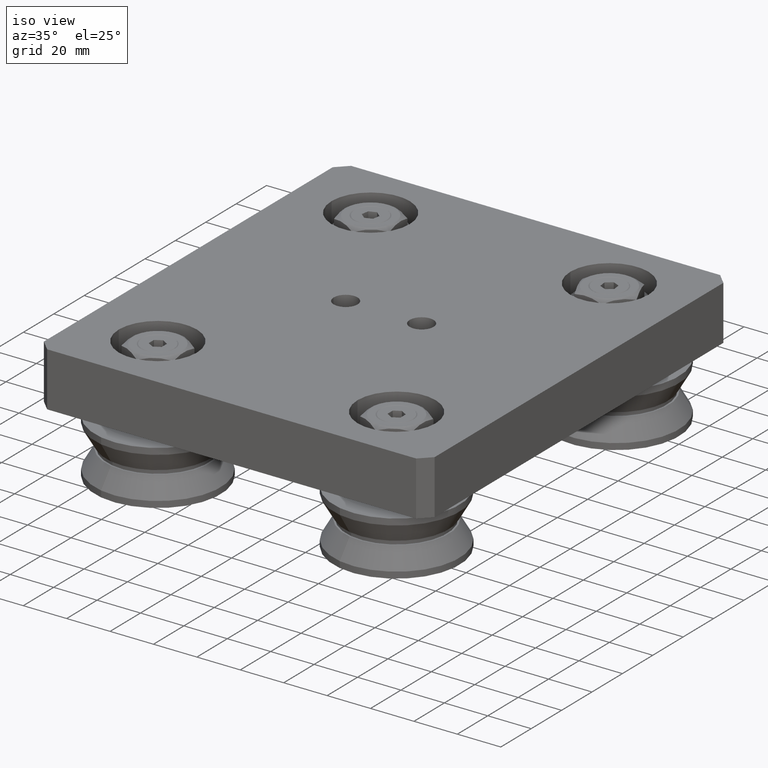
[diagram: clean part render]
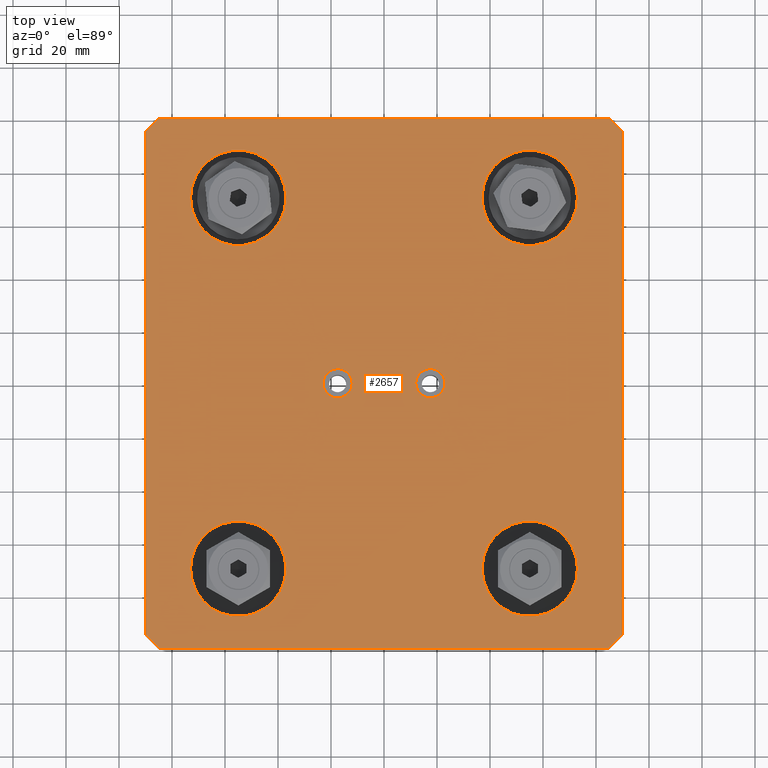
[diagram: tour spotlight — one face highlighted and labeled with its STEP entity id]
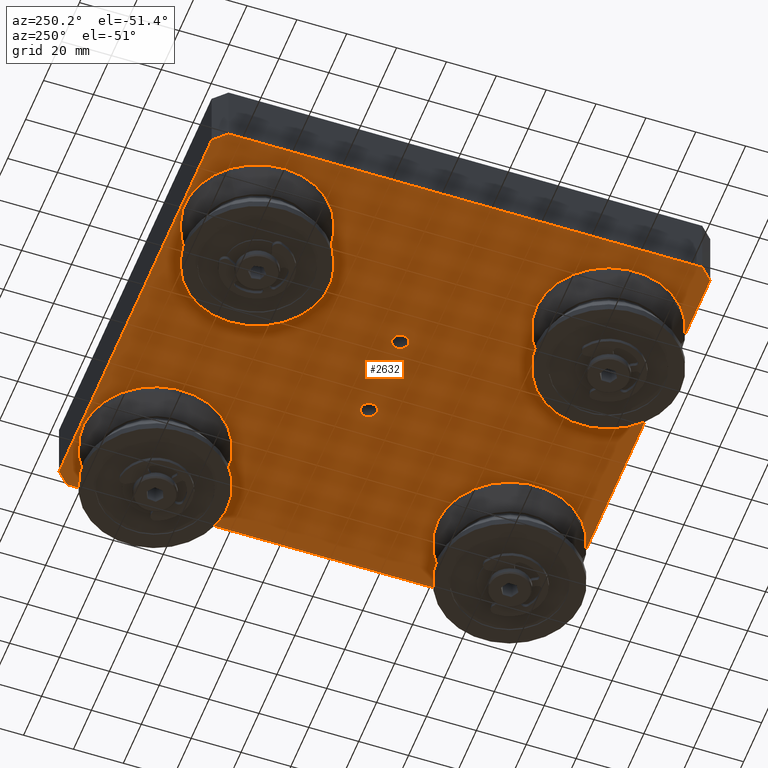
[diagram: tour spotlight — one face highlighted and labeled with its STEP entity id]
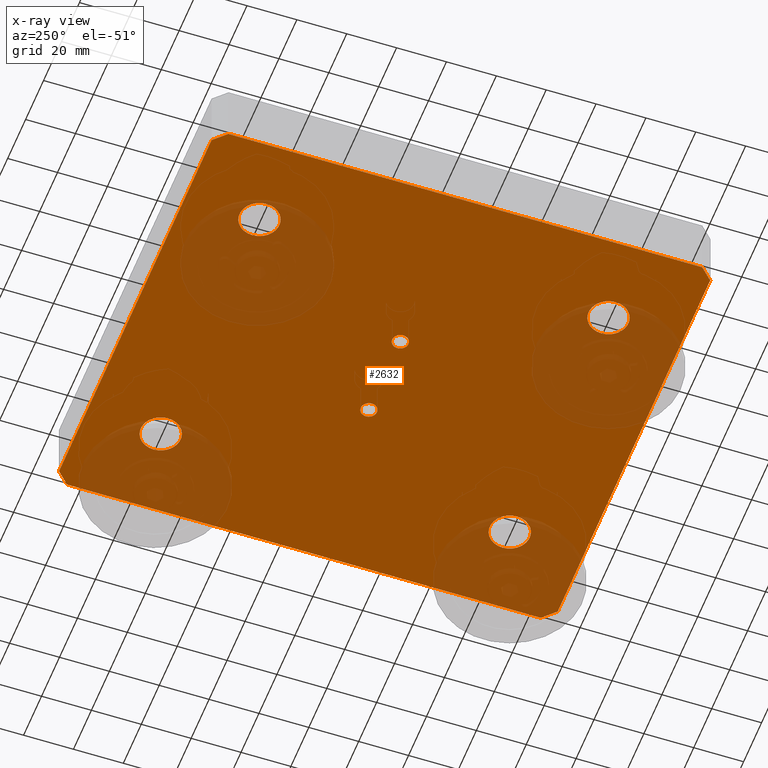
[diagram: x-ray of the same camera — body ghosted, this tour face saturated]
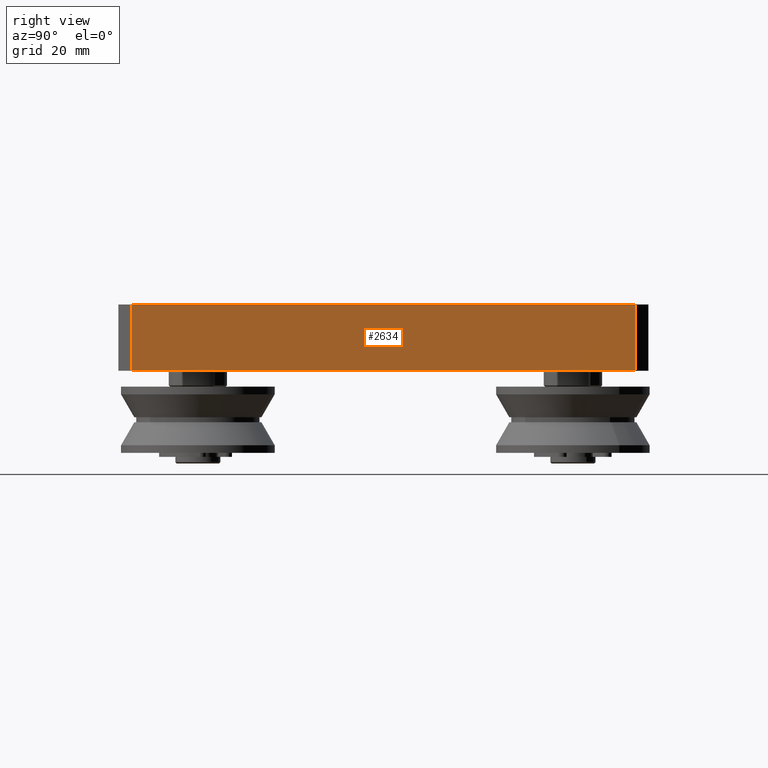
[diagram: tour spotlight — one face highlighted and labeled with its STEP entity id]
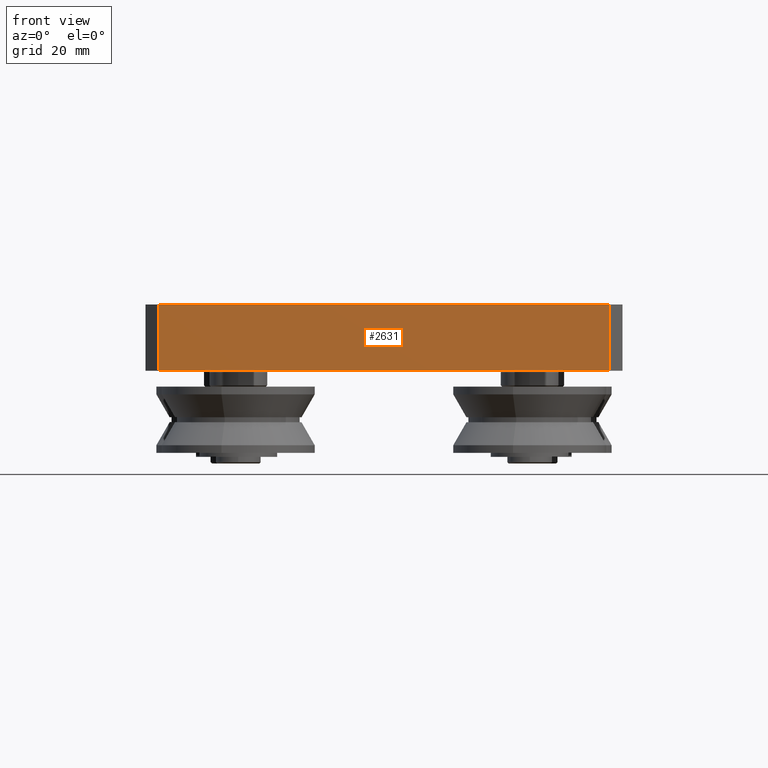
[diagram: tour spotlight — one face highlighted and labeled with its STEP entity id]
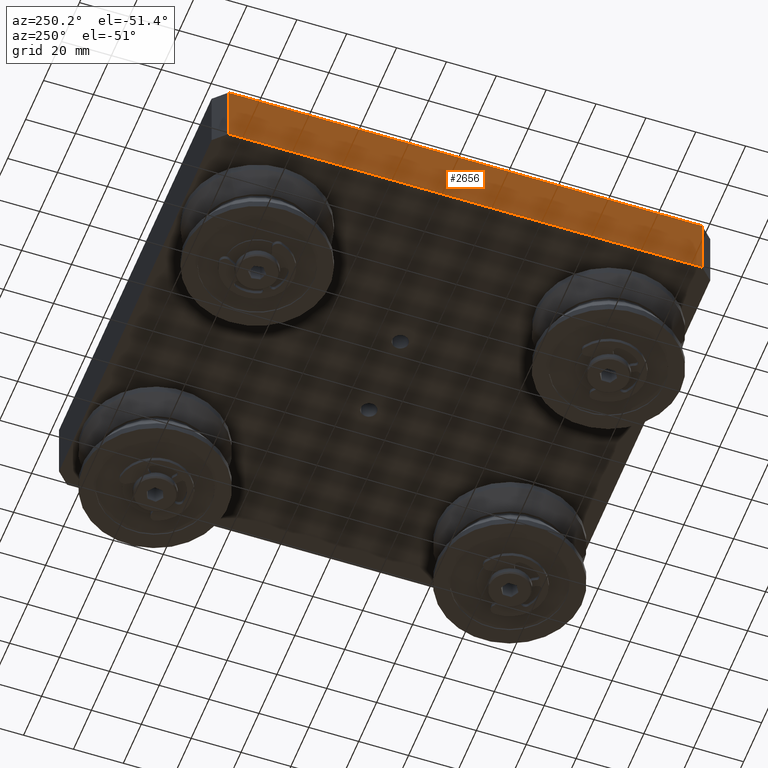
[diagram: tour spotlight — one face highlighted and labeled with its STEP entity id]
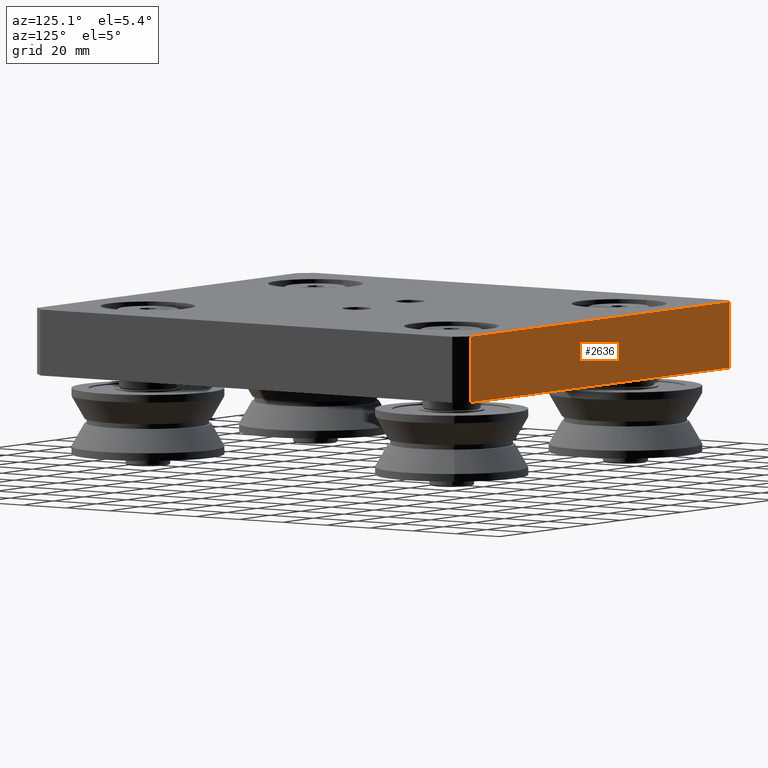
[diagram: tour spotlight — one face highlighted and labeled with its STEP entity id]
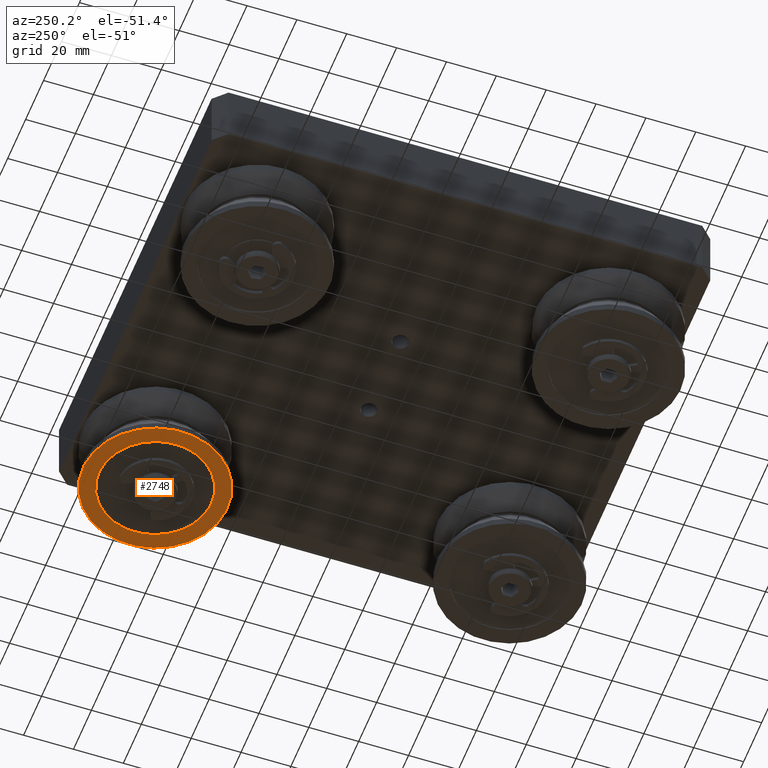
[diagram: tour spotlight — one face highlighted and labeled with its STEP entity id]
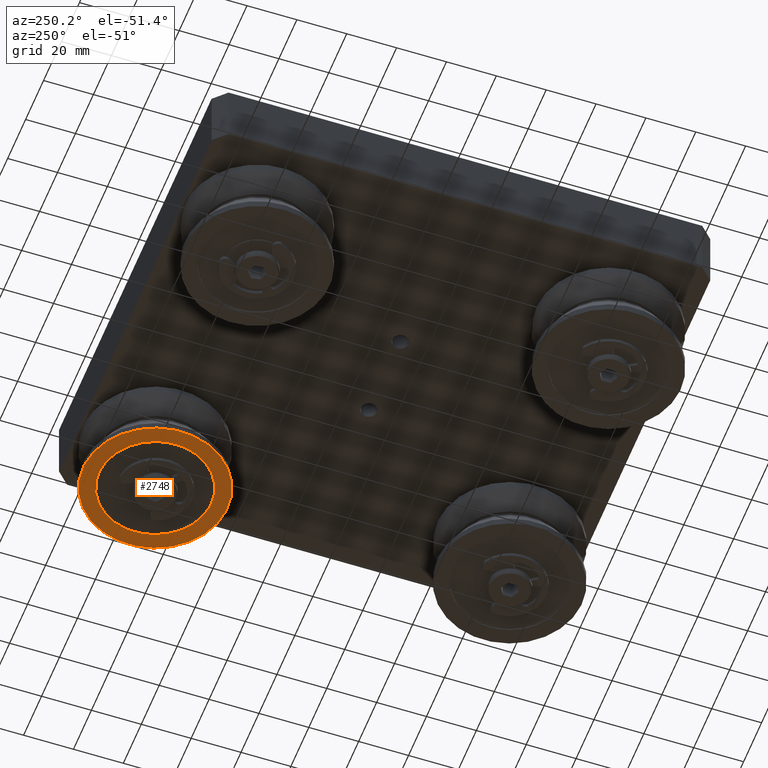
[diagram: tour spotlight — one face highlighted and labeled with its STEP entity id]
A machine part: a face-by-face anatomy tour. The part has 428 B-rep faces; the first image is the clean iso view, then the 8 largest visible faces are spotlighted one at a time (largest first), each with its STEP entity span.

Face 1 — top view, entity #2657. In plain terms, the highlighted planar face has unit normal (0, 0, 1).
Definition (entity closure, byte-faithful):
#200=FACE_BOUND('',#582,.T.);
#201=FACE_BOUND('',#583,.T.);
#202=FACE_BOUND('',#584,.T.);
#203=FACE_BOUND('',#585,.T.);
#204=FACE_BOUND('',#586,.T.);
#205=FACE_BOUND('',#587,.T.);
#235=CIRCLE('',#3023,18.);
#238=CIRCLE('',#3029,18.);
#241=CIRCLE('',#3035,18.);
#244=CIRCLE('',#3041,18.);
#247=CIRCLE('',#3047,5.5);
#250=CIRCLE('',#3053,5.5);
#398=FACE_OUTER_BOUND('',#581,.T.);
#581=EDGE_LOOP('',(#1894,#1895,#1896,#1897,#1898,#1899,#1900,#1901));
#582=EDGE_LOOP('',(#1902));
#583=EDGE_LOOP('',(#1903));
#584=EDGE_LOOP('',(#1904));
#585=EDGE_LOOP('',(#1905));
#586=EDGE_LOOP('',(#1906));
#587=EDGE_LOOP('',(#1907));
#752=LINE('',#4243,#967);
#758=LINE('',#4254,#973);
#765=LINE('',#4281,#980);
#768=LINE('',#4286,#983);
#769=LINE('',#4289,#984);
#772=LINE('',#4294,#987);
#773=LINE('',#4297,#988);
#787=LINE('',#4366,#1002);
#967=VECTOR('',#3349,10.);
#973=VECTOR('',#3357,10.);
#980=VECTOR('',#3380,10.);
#983=VECTOR('',#3385,10.);
#984=VECTOR('',#3388,10.);
#987=VECTOR('',#3393,10.);
#988=VECTOR('',#3396,10.);
#1002=VECTOR('',#3484,10.);
#1182=VERTEX_POINT('',#4241);
#1183=VERTEX_POINT('',#4242);
#1187=VERTEX_POINT('',#4252);
#1199=VERTEX_POINT('',#4280);
#1200=VERTEX_POINT('',#4284);
#1201=VERTEX_POINT('',#4288);
#1202=VERTEX_POINT('',#4292);
#1203=VERTEX_POINT('',#4296);
#1206=VERTEX_POINT('',#4305);
#1209=VERTEX_POINT('',#4316);
#1212=VERTEX_POINT('',#4327);
#1215=VERTEX_POINT('',#4338);
#1218=VERTEX_POINT('',#4349);
#1221=VERTEX_POINT('',#4360);
#1417=EDGE_CURVE('',#1182,#1183,#752,.T.);
#1423=EDGE_CURVE('',#1182,#1187,#758,.T.);
#1436=EDGE_CURVE('',#1199,#1187,#765,.T.);
#1439=EDGE_CURVE('',#1199,#1200,#768,.T.);
#1440=EDGE_CURVE('',#1201,#1200,#769,.T.);
#1443=EDGE_CURVE('',#1201,#1202,#772,.T.);
#1444=EDGE_CURVE('',#1203,#1202,#773,.T.);
#1448=EDGE_CURVE('',#1206,#1206,#235,.T.);
#1453=EDGE_CURVE('',#1209,#1209,#238,.T.);
#1458=EDGE_CURVE('',#1212,#1212,#241,.T.);
#1463=EDGE_CURVE('',#1215,#1215,#244,.T.);
#1468=EDGE_CURVE('',#1218,#1218,#247,.T.);
#1473=EDGE_CURVE('',#1221,#1221,#250,.T.);
#1476=EDGE_CURVE('',#1203,#1183,#787,.T.);
#1894=ORIENTED_EDGE('',*,*,#1417,.F.);
#1895=ORIENTED_EDGE('',*,*,#1423,.T.);
#1896=ORIENTED_EDGE('',*,*,#1436,.F.);
#1897=ORIENTED_EDGE('',*,*,#1439,.T.);
#1898=ORIENTED_EDGE('',*,*,#1440,.F.);
#1899=ORIENTED_EDGE('',*,*,#1443,.T.);
#1900=ORIENTED_EDGE('',*,*,#1444,.F.);
#1901=ORIENTED_EDGE('',*,*,#1476,.T.);
#1902=ORIENTED_EDGE('',*,*,#1448,.T.);
#1903=ORIENTED_EDGE('',*,*,#1453,.T.);
#1904=ORIENTED_EDGE('',*,*,#1458,.T.);
#1905=ORIENTED_EDGE('',*,*,#1463,.T.);
#1906=ORIENTED_EDGE('',*,*,#1468,.T.);
#1907=ORIENTED_EDGE('',*,*,#1473,.T.);
#2545=PLANE('',#3056);
#2657=ADVANCED_FACE('',(#398,#200,#201,#202,#203,#204,#205),#2545,.T.);
#3023=AXIS2_PLACEMENT_3D('',#4306,#3406,#3407);
#3029=AXIS2_PLACEMENT_3D('',#4317,#3420,#3421);
#3035=AXIS2_PLACEMENT_3D('',#4328,#3434,#3435);
#3041=AXIS2_PLACEMENT_3D('',#4339,#3448,#3449);
#3047=AXIS2_PLACEMENT_3D('',#4350,#3462,#3463);
#3053=AXIS2_PLACEMENT_3D('',#4361,#3476,#3477);
#3056=AXIS2_PLACEMENT_3D('',#4367,#3485,#3486);
#3349=DIRECTION('',(-0.707106781186548,0.707106781186548,0.));
#3357=DIRECTION('',(1.,0.,0.));
#3380=DIRECTION('',(-0.707106781186548,-0.707106781186548,0.));
#3385=DIRECTION('',(0.,1.,0.));
#3388=DIRECTION('',(0.707106781186548,-0.707106781186548,0.));
#3393=DIRECTION('',(-1.,0.,0.));
#3396=DIRECTION('',(0.707106781186548,0.707106781186548,0.));
#3406=DIRECTION('center_axis',(0.,0.,-1.));
#3407=DIRECTION('ref_axis',(1.,0.,0.));
#3420=DIRECTION('center_axis',(0.,0.,-1.));
#3421=DIRECTION('ref_axis',(1.,0.,0.));
#3434=DIRECTION('center_axis',(0.,0.,-1.));
#3435=DIRECTION('ref_axis',(1.,0.,0.));
#3448=DIRECTION('center_axis',(0.,0.,-1.));
#3449=DIRECTION('ref_axis',(1.,0.,0.));
#3462=DIRECTION('center_axis',(0.,0.,-1.));
#3463=DIRECTION('ref_axis',(1.,0.,0.));
#3476=DIRECTION('center_axis',(0.,0.,-1.));
#3477=DIRECTION('ref_axis',(1.,0.,0.));
#3484=DIRECTION('',(0.,-1.,0.));
#3485=DIRECTION('center_axis',(0.,0.,1.));
#3486=DIRECTION('ref_axis',(1.,0.,0.));
#4241=CARTESIAN_POINT('',(-85.,-100.,25.));
#4242=CARTESIAN_POINT('',(-90.,-95.,25.));
#4243=CARTESIAN_POINT('',(-90.,-95.,25.));
#4252=CARTESIAN_POINT('',(85.,-100.,25.));
#4254=CARTESIAN_POINT('',(90.,-100.,25.));
#4280=CARTESIAN_POINT('',(90.,-95.,25.));
#4281=CARTESIAN_POINT('',(90.,-95.,25.));
#4284=CARTESIAN_POINT('',(90.,95.,25.));
#4286=CARTESIAN_POINT('',(90.,100.,25.));
#4288=CARTESIAN_POINT('',(85.,100.,25.));
#4289=CARTESIAN_POINT('',(90.,95.,25.));
#4292=CARTESIAN_POINT('',(-85.,100.,25.));
#4294=CARTESIAN_POINT('',(-90.,100.,25.));
#4296=CARTESIAN_POINT('',(-90.,95.,25.));
#4297=CARTESIAN_POINT('',(-90.,95.,25.));
#4305=CARTESIAN_POINT('',(37.,-70.,25.));
#4306=CARTESIAN_POINT('Origin',(55.,-70.,25.));
#4316=CARTESIAN_POINT('',(-73.,70.,25.));
#4317=CARTESIAN_POINT('Origin',(-55.,70.,25.));
#4327=CARTESIAN_POINT('',(37.,70.,25.));
#4328=CARTESIAN_POINT('Origin',(55.,70.,25.));
#4338=CARTESIAN_POINT('',(-73.,-70.,25.));
#4339=CARTESIAN_POINT('Origin',(-55.,-70.,25.));
#4349=CARTESIAN_POINT('',(-23.,-6.73555739531044E-16,25.));
#4350=CARTESIAN_POINT('Origin',(-17.5,0.,25.));
#4360=CARTESIAN_POINT('',(12.,-6.73555739531044E-16,25.));
#4361=CARTESIAN_POINT('Origin',(17.5,0.,25.));
#4366=CARTESIAN_POINT('',(-90.,-100.,25.));
#4367=CARTESIAN_POINT('Origin',(0.,0.,25.));

Face 2 — auxiliary view, entity #2632. An x-ray twin of the same camera follows (body ghosted, this face saturated) — the face is partly hidden behind the body. In plain terms, the highlighted planar face has unit normal (0, 0, 1).
Definition (entity closure, byte-faithful):
#188=FACE_BOUND('',#545,.T.);
#189=FACE_BOUND('',#546,.T.);
#190=FACE_BOUND('',#547,.T.);
#191=FACE_BOUND('',#548,.T.);
#192=FACE_BOUND('',#549,.T.);
#193=FACE_BOUND('',#550,.T.);
#227=CIRCLE('',#3008,8.);
#228=CIRCLE('',#3009,8.);
#229=CIRCLE('',#3010,8.);
#230=CIRCLE('',#3011,8.);
#231=CIRCLE('',#3012,3.25);
#232=CIRCLE('',#3013,3.25);
#373=FACE_OUTER_BOUND('',#544,.T.);
#544=EDGE_LOOP('',(#1796,#1797,#1798,#1799,#1800,#1801,#1802,#1803));
#545=EDGE_LOOP('',(#1804));
#546=EDGE_LOOP('',(#1805));
#547=EDGE_LOOP('',(#1806));
#548=EDGE_LOOP('',(#1807));
#549=EDGE_LOOP('',(#1808));
#550=EDGE_LOOP('',(#1809));
#754=LINE('',#4247,#969);
#756=LINE('',#4251,#971);
#759=LINE('',#4257,#974);
#760=LINE('',#4259,#975);
#761=LINE('',#4261,#976);
#762=LINE('',#4263,#977);
#763=LINE('',#4265,#978);
#764=LINE('',#4266,#979);
#969=VECTOR('',#3351,10.);
#971=VECTOR('',#3355,10.);
#974=VECTOR('',#3360,10.);
#975=VECTOR('',#3361,10.);
#976=VECTOR('',#3362,10.);
#977=VECTOR('',#3363,10.);
#978=VECTOR('',#3364,10.);
#979=VECTOR('',#3365,10.);
#1184=VERTEX_POINT('',#4244);
#1185=VERTEX_POINT('',#4246);
#1186=VERTEX_POINT('',#4250);
#1188=VERTEX_POINT('',#4256);
#1189=VERTEX_POINT('',#4258);
#1190=VERTEX_POINT('',#4260);
#1191=VERTEX_POINT('',#4262);
#1192=VERTEX_POINT('',#4264);
#1193=VERTEX_POINT('',#4267);
#1194=VERTEX_POINT('',#4269);
#1195=VERTEX_POINT('',#4271);
#1196=VERTEX_POINT('',#4273);
#1197=VERTEX_POINT('',#4275);
#1198=VERTEX_POINT('',#4277);
#1419=EDGE_CURVE('',#1184,#1185,#754,.T.);
#1421=EDGE_CURVE('',#1186,#1185,#756,.T.);
#1424=EDGE_CURVE('',#1184,#1188,#759,.T.);
#1425=EDGE_CURVE('',#1189,#1188,#760,.T.);
#1426=EDGE_CURVE('',#1189,#1190,#761,.T.);
#1427=EDGE_CURVE('',#1191,#1190,#762,.T.);
#1428=EDGE_CURVE('',#1191,#1192,#763,.T.);
#1429=EDGE_CURVE('',#1186,#1192,#764,.T.);
#1430=EDGE_CURVE('',#1193,#1193,#227,.T.);
#1431=EDGE_CURVE('',#1194,#1194,#228,.T.);
#1432=EDGE_CURVE('',#1195,#1195,#229,.T.);
#1433=EDGE_CURVE('',#1196,#1196,#230,.T.);
#1434=EDGE_CURVE('',#1197,#1197,#231,.T.);
#1435=EDGE_CURVE('',#1198,#1198,#232,.T.);
#1796=ORIENTED_EDGE('',*,*,#1419,.F.);
#1797=ORIENTED_EDGE('',*,*,#1424,.T.);
#1798=ORIENTED_EDGE('',*,*,#1425,.F.);
#1799=ORIENTED_EDGE('',*,*,#1426,.T.);
#1800=ORIENTED_EDGE('',*,*,#1427,.F.);
#1801=ORIENTED_EDGE('',*,*,#1428,.T.);
#1802=ORIENTED_EDGE('',*,*,#1429,.F.);
#1803=ORIENTED_EDGE('',*,*,#1421,.T.);
#1804=ORIENTED_EDGE('',*,*,#1430,.T.);
#1805=ORIENTED_EDGE('',*,*,#1431,.T.);
#1806=ORIENTED_EDGE('',*,*,#1432,.T.);
#1807=ORIENTED_EDGE('',*,*,#1433,.T.);
#1808=ORIENTED_EDGE('',*,*,#1434,.T.);
#1809=ORIENTED_EDGE('',*,*,#1435,.T.);
#2532=PLANE('',#3007);
#2632=ADVANCED_FACE('',(#373,#188,#189,#190,#191,#192,#193),#2532,.F.);
#3007=AXIS2_PLACEMENT_3D('',#4255,#3358,#3359);
#3008=AXIS2_PLACEMENT_3D('',#4268,#3366,#3367);
#3009=AXIS2_PLACEMENT_3D('',#4270,#3368,#3369);
#3010=AXIS2_PLACEMENT_3D('',#4272,#3370,#3371);
#3011=AXIS2_PLACEMENT_3D('',#4274,#3372,#3373);
#3012=AXIS2_PLACEMENT_3D('',#4276,#3374,#3375);
#3013=AXIS2_PLACEMENT_3D('',#4278,#3376,#3377);
#3351=DIRECTION('',(0.707106781186548,-0.707106781186548,0.));
#3355=DIRECTION('',(-1.,0.,0.));
#3358=DIRECTION('center_axis',(0.,0.,1.));
#3359=DIRECTION('ref_axis',(1.,0.,0.));
#3360=DIRECTION('',(0.,1.,0.));
#3361=DIRECTION('',(-0.707106781186548,-0.707106781186548,0.));
#3362=DIRECTION('',(1.,0.,0.));
#3363=DIRECTION('',(-0.707106781186548,0.707106781186548,0.));
#3364=DIRECTION('',(0.,-1.,0.));
#3365=DIRECTION('',(0.707106781186548,0.707106781186548,0.));
#3366=DIRECTION('center_axis',(0.,0.,1.));
#3367=DIRECTION('ref_axis',(1.,0.,0.));
#3368=DIRECTION('center_axis',(0.,0.,1.));
#3369=DIRECTION('ref_axis',(1.,0.,0.));
#3370=DIRECTION('center_axis',(0.,0.,1.));
#3371=DIRECTION('ref_axis',(1.,0.,0.));
#3372=DIRECTION('center_axis',(0.,0.,1.));
#3373=DIRECTION('ref_axis',(1.,0.,0.));
#3374=DIRECTION('center_axis',(0.,0.,1.));
#3375=DIRECTION('ref_axis',(1.,0.,0.));
#3376=DIRECTION('center_axis',(0.,0.,1.));
#3377=DIRECTION('ref_axis',(1.,0.,0.));
#4244=CARTESIAN_POINT('',(-90.,-95.,0.));
#4246=CARTESIAN_POINT('',(-85.,-100.,0.));
#4247=CARTESIAN_POINT('',(-90.,-95.,0.));
#4250=CARTESIAN_POINT('',(85.,-100.,0.));
#4251=CARTESIAN_POINT('',(90.,-100.,0.));
#4255=CARTESIAN_POINT('Origin',(0.,0.,0.));
#4256=CARTESIAN_POINT('',(-90.,95.,0.));
#4257=CARTESIAN_POINT('',(-90.,-100.,0.));
#4258=CARTESIAN_POINT('',(-85.,100.,0.));
#4259=CARTESIAN_POINT('',(-90.,95.,0.));
#4260=CARTESIAN_POINT('',(85.,100.,0.));
#4261=CARTESIAN_POINT('',(-90.,100.,0.));
#4262=CARTESIAN_POINT('',(90.,95.,0.));
#4263=CARTESIAN_POINT('',(90.,95.,0.));
#4264=CARTESIAN_POINT('',(90.,-95.,0.));
#4265=CARTESIAN_POINT('',(90.,100.,0.));
#4266=CARTESIAN_POINT('',(90.,-95.,0.));
#4267=CARTESIAN_POINT('',(47.,-70.,0.));
#4268=CARTESIAN_POINT('Origin',(55.,-70.,0.));
#4269=CARTESIAN_POINT('',(-63.,70.,0.));
#4270=CARTESIAN_POINT('Origin',(-55.,70.,0.));
#4271=CARTESIAN_POINT('',(47.,70.,0.));
#4272=CARTESIAN_POINT('Origin',(55.,70.,0.));
#4273=CARTESIAN_POINT('',(-63.,-70.,0.));
#4274=CARTESIAN_POINT('Origin',(-55.,-70.,0.));
#4275=CARTESIAN_POINT('',(-20.75,-3.9801020972289E-16,0.));
#4276=CARTESIAN_POINT('Origin',(-17.5,0.,0.));
#4277=CARTESIAN_POINT('',(14.25,-3.9801020972289E-16,0.));
#4278=CARTESIAN_POINT('Origin',(17.5,0.,0.));

Face 3 — right view, entity #2634. In plain terms, the highlighted planar face has unit normal (1, 0, 0).
Definition (entity closure, byte-faithful):
#375=FACE_OUTER_BOUND('',#552,.T.);
#552=EDGE_LOOP('',(#1814,#1815,#1816,#1817));
#763=LINE('',#4265,#978);
#766=LINE('',#4282,#981);
#767=LINE('',#4285,#982);
#768=LINE('',#4286,#983);
#978=VECTOR('',#3364,10.);
#981=VECTOR('',#3381,10.);
#982=VECTOR('',#3384,10.);
#983=VECTOR('',#3385,10.);
#1191=VERTEX_POINT('',#4262);
#1192=VERTEX_POINT('',#4264);
#1199=VERTEX_POINT('',#4280);
#1200=VERTEX_POINT('',#4284);
#1428=EDGE_CURVE('',#1191,#1192,#763,.T.);
#1437=EDGE_CURVE('',#1192,#1199,#766,.T.);
#1438=EDGE_CURVE('',#1200,#1191,#767,.T.);
#1439=EDGE_CURVE('',#1199,#1200,#768,.T.);
#1814=ORIENTED_EDGE('',*,*,#1437,.F.);
#1815=ORIENTED_EDGE('',*,*,#1428,.F.);
#1816=ORIENTED_EDGE('',*,*,#1438,.F.);
#1817=ORIENTED_EDGE('',*,*,#1439,.F.);
#2534=PLANE('',#3015);
#2634=ADVANCED_FACE('',(#375),#2534,.T.);
#3015=AXIS2_PLACEMENT_3D('',#4283,#3382,#3383);
#3364=DIRECTION('',(0.,-1.,0.));
#3381=DIRECTION('',(0.,0.,1.));
#3382=DIRECTION('center_axis',(1.,0.,0.));
#3383=DIRECTION('ref_axis',(0.,1.,0.));
#3384=DIRECTION('',(0.,0.,-1.));
#3385=DIRECTION('',(0.,1.,0.));
#4262=CARTESIAN_POINT('',(90.,95.,0.));
#4264=CARTESIAN_POINT('',(90.,-95.,0.));
#4265=CARTESIAN_POINT('',(90.,100.,0.));
#4280=CARTESIAN_POINT('',(90.,-95.,25.));
#4282=CARTESIAN_POINT('',(90.,-95.,0.));
#4283=CARTESIAN_POINT('Origin',(90.,-100.,0.));
#4284=CARTESIAN_POINT('',(90.,95.,25.));
#4285=CARTESIAN_POINT('',(90.,95.,0.));
#4286=CARTESIAN_POINT('',(90.,100.,25.));

Face 4 — front view, entity #2631. In plain terms, the highlighted planar face has unit normal (0, -1, 0).
Definition (entity closure, byte-faithful):
#372=FACE_OUTER_BOUND('',#543,.T.);
#543=EDGE_LOOP('',(#1792,#1793,#1794,#1795));
#755=LINE('',#4248,#970);
#756=LINE('',#4251,#971);
#757=LINE('',#4253,#972);
#758=LINE('',#4254,#973);
#970=VECTOR('',#3352,10.);
#971=VECTOR('',#3355,10.);
#972=VECTOR('',#3356,10.);
#973=VECTOR('',#3357,10.);
#1182=VERTEX_POINT('',#4241);
#1185=VERTEX_POINT('',#4246);
#1186=VERTEX_POINT('',#4250);
#1187=VERTEX_POINT('',#4252);
#1420=EDGE_CURVE('',#1185,#1182,#755,.T.);
#1421=EDGE_CURVE('',#1186,#1185,#756,.T.);
#1422=EDGE_CURVE('',#1187,#1186,#757,.T.);
#1423=EDGE_CURVE('',#1182,#1187,#758,.T.);
#1792=ORIENTED_EDGE('',*,*,#1420,.F.);
#1793=ORIENTED_EDGE('',*,*,#1421,.F.);
#1794=ORIENTED_EDGE('',*,*,#1422,.F.);
#1795=ORIENTED_EDGE('',*,*,#1423,.F.);
#2531=PLANE('',#3006);
#2631=ADVANCED_FACE('',(#372),#2531,.T.);
#3006=AXIS2_PLACEMENT_3D('',#4249,#3353,#3354);
#3352=DIRECTION('',(0.,0.,1.));
#3353=DIRECTION('center_axis',(0.,-1.,0.));
#3354=DIRECTION('ref_axis',(1.,0.,0.));
#3355=DIRECTION('',(-1.,0.,0.));
#3356=DIRECTION('',(0.,0.,-1.));
#3357=DIRECTION('',(1.,0.,0.));
#4241=CARTESIAN_POINT('',(-85.,-100.,25.));
#4246=CARTESIAN_POINT('',(-85.,-100.,0.));
#4248=CARTESIAN_POINT('',(-85.,-100.,0.));
#4249=CARTESIAN_POINT('Origin',(-90.,-100.,0.));
#4250=CARTESIAN_POINT('',(85.,-100.,0.));
#4251=CARTESIAN_POINT('',(90.,-100.,0.));
#4252=CARTESIAN_POINT('',(85.,-100.,25.));
#4253=CARTESIAN_POINT('',(85.,-100.,0.));
#4254=CARTESIAN_POINT('',(90.,-100.,25.));

Face 5 — auxiliary view, entity #2656. In plain terms, the highlighted planar face has unit normal (-1, 0, 0).
Definition (entity closure, byte-faithful):
#397=FACE_OUTER_BOUND('',#580,.T.);
#580=EDGE_LOOP('',(#1890,#1891,#1892,#1893));
#753=LINE('',#4245,#968);
#759=LINE('',#4257,#974);
#774=LINE('',#4298,#989);
#787=LINE('',#4366,#1002);
#968=VECTOR('',#3350,10.);
#974=VECTOR('',#3360,10.);
#989=VECTOR('',#3397,10.);
#1002=VECTOR('',#3484,10.);
#1183=VERTEX_POINT('',#4242);
#1184=VERTEX_POINT('',#4244);
#1188=VERTEX_POINT('',#4256);
#1203=VERTEX_POINT('',#4296);
#1418=EDGE_CURVE('',#1183,#1184,#753,.T.);
#1424=EDGE_CURVE('',#1184,#1188,#759,.T.);
#1445=EDGE_CURVE('',#1188,#1203,#774,.T.);
#1476=EDGE_CURVE('',#1203,#1183,#787,.T.);
#1890=ORIENTED_EDGE('',*,*,#1418,.F.);
#1891=ORIENTED_EDGE('',*,*,#1476,.F.);
#1892=ORIENTED_EDGE('',*,*,#1445,.F.);
#1893=ORIENTED_EDGE('',*,*,#1424,.F.);
#2544=PLANE('',#3055);
#2656=ADVANCED_FACE('',(#397),#2544,.T.);
#3055=AXIS2_PLACEMENT_3D('',#4365,#3482,#3483);
#3350=DIRECTION('',(0.,0.,-1.));
#3360=DIRECTION('',(0.,1.,0.));
#3397=DIRECTION('',(0.,0.,1.));
#3482=DIRECTION('center_axis',(-1.,0.,0.));
#3483=DIRECTION('ref_axis',(0.,-1.,0.));
#3484=DIRECTION('',(0.,-1.,0.));
#4242=CARTESIAN_POINT('',(-90.,-95.,25.));
#4244=CARTESIAN_POINT('',(-90.,-95.,0.));
#4245=CARTESIAN_POINT('',(-90.,-95.,0.));
#4256=CARTESIAN_POINT('',(-90.,95.,0.));
#4257=CARTESIAN_POINT('',(-90.,-100.,0.));
#4296=CARTESIAN_POINT('',(-90.,95.,25.));
#4298=CARTESIAN_POINT('',(-90.,95.,0.));
#4365=CARTESIAN_POINT('Origin',(-90.,100.,0.));
#4366=CARTESIAN_POINT('',(-90.,-100.,25.));

Face 6 — auxiliary view, entity #2636. In plain terms, the highlighted planar face has unit normal (0, 1, 0).
Definition (entity closure, byte-faithful):
#377=FACE_OUTER_BOUND('',#554,.T.);
#554=EDGE_LOOP('',(#1822,#1823,#1824,#1825));
#761=LINE('',#4261,#976);
#770=LINE('',#4290,#985);
#771=LINE('',#4293,#986);
#772=LINE('',#4294,#987);
#976=VECTOR('',#3362,10.);
#985=VECTOR('',#3389,10.);
#986=VECTOR('',#3392,10.);
#987=VECTOR('',#3393,10.);
#1189=VERTEX_POINT('',#4258);
#1190=VERTEX_POINT('',#4260);
#1201=VERTEX_POINT('',#4288);
#1202=VERTEX_POINT('',#4292);
#1426=EDGE_CURVE('',#1189,#1190,#761,.T.);
#1441=EDGE_CURVE('',#1190,#1201,#770,.T.);
#1442=EDGE_CURVE('',#1202,#1189,#771,.T.);
#1443=EDGE_CURVE('',#1201,#1202,#772,.T.);
#1822=ORIENTED_EDGE('',*,*,#1441,.F.);
#1823=ORIENTED_EDGE('',*,*,#1426,.F.);
#1824=ORIENTED_EDGE('',*,*,#1442,.F.);
#1825=ORIENTED_EDGE('',*,*,#1443,.F.);
#2536=PLANE('',#3017);
#2636=ADVANCED_FACE('',(#377),#2536,.T.);
#3017=AXIS2_PLACEMENT_3D('',#4291,#3390,#3391);
#3362=DIRECTION('',(1.,0.,0.));
#3389=DIRECTION('',(0.,0.,1.));
#3390=DIRECTION('center_axis',(0.,1.,0.));
#3391=DIRECTION('ref_axis',(-1.,0.,0.));
#3392=DIRECTION('',(0.,0.,-1.));
#3393=DIRECTION('',(-1.,0.,0.));
#4258=CARTESIAN_POINT('',(-85.,100.,0.));
#4260=CARTESIAN_POINT('',(85.,100.,0.));
#4261=CARTESIAN_POINT('',(-90.,100.,0.));
#4288=CARTESIAN_POINT('',(85.,100.,25.));
#4290=CARTESIAN_POINT('',(85.,100.,0.));
#4291=CARTESIAN_POINT('Origin',(90.,100.,0.));
#4292=CARTESIAN_POINT('',(-85.,100.,25.));
#4293=CARTESIAN_POINT('',(-85.,100.,0.));
#4294=CARTESIAN_POINT('',(-90.,100.,25.));

Face 7 — auxiliary view, entity #2748. In plain terms, the highlighted planar face has unit normal (0, 0, -1).
Definition (entity closure, byte-faithful):
#219=FACE_BOUND('',#692,.T.);
#318=CIRCLE('',#3219,22.5);
#319=CIRCLE('',#3221,29.);
#489=FACE_OUTER_BOUND('',#691,.T.);
#691=EDGE_LOOP('',(#2290));
#692=EDGE_LOOP('',(#2291));
#1340=VERTEX_POINT('',#4771);
#1341=VERTEX_POINT('',#4775);
#1668=EDGE_CURVE('',#1340,#1340,#318,.T.);
#1669=EDGE_CURVE('',#1341,#1341,#319,.T.);
#2290=ORIENTED_EDGE('',*,*,#1669,.F.);
#2291=ORIENTED_EDGE('',*,*,#1668,.T.);
#2608=PLANE('',#3220);
#2748=ADVANCED_FACE('',(#489,#219),#2608,.T.);
#3219=AXIS2_PLACEMENT_3D('',#4773,#3935,#3936);
#3220=AXIS2_PLACEMENT_3D('',#4774,#3937,#3938);
#3221=AXIS2_PLACEMENT_3D('',#4776,#3939,#3940);
#3935=DIRECTION('center_axis',(1.,0.,0.));
#3936=DIRECTION('ref_axis',(0.,1.,0.));
#3937=DIRECTION('center_axis',(-1.,0.,0.));
#3938=DIRECTION('ref_axis',(0.,0.,1.));
#3939=DIRECTION('center_axis',(1.,0.,0.));
#3940=DIRECTION('ref_axis',(0.,1.,0.));
#4771=CARTESIAN_POINT('',(-12.5,-22.5,-2.75545529808154E-15));
#4773=CARTESIAN_POINT('Origin',(-12.5,0.,0.));
#4774=CARTESIAN_POINT('Origin',(-12.5,25.75,0.));
#4775=CARTESIAN_POINT('',(-12.5,-29.,-3.55147571752732E-15));
#4776=CARTESIAN_POINT('Origin',(-12.5,0.,0.));

Face 8 — auxiliary view, entity #2748. In plain terms, the highlighted planar face has unit normal (0, -0, -1).
Definition (entity closure, byte-faithful):
#219=FACE_BOUND('',#692,.T.);
#318=CIRCLE('',#3219,22.5);
#319=CIRCLE('',#3221,29.);
#489=FACE_OUTER_BOUND('',#691,.T.);
#691=EDGE_LOOP('',(#2290));
#692=EDGE_LOOP('',(#2291));
#1340=VERTEX_POINT('',#4771);
#1341=VERTEX_POINT('',#4775);
#1668=EDGE_CURVE('',#1340,#1340,#318,.T.);
#1669=EDGE_CURVE('',#1341,#1341,#319,.T.);
#2290=ORIENTED_EDGE('',*,*,#1669,.F.);
#2291=ORIENTED_EDGE('',*,*,#1668,.T.);
#2608=PLANE('',#3220);
#2748=ADVANCED_FACE('',(#489,#219),#2608,.T.);
#3219=AXIS2_PLACEMENT_3D('',#4773,#3935,#3936);
#3220=AXIS2_PLACEMENT_3D('',#4774,#3937,#3938);
#3221=AXIS2_PLACEMENT_3D('',#4776,#3939,#3940);
#3935=DIRECTION('center_axis',(1.,0.,0.));
#3936=DIRECTION('ref_axis',(0.,1.,0.));
#3937=DIRECTION('center_axis',(-1.,0.,0.));
#3938=DIRECTION('ref_axis',(0.,0.,1.));
#3939=DIRECTION('center_axis',(1.,0.,0.));
#3940=DIRECTION('ref_axis',(0.,1.,0.));
#4771=CARTESIAN_POINT('',(-12.5,-22.5,-2.75545529808154E-15));
#4773=CARTESIAN_POINT('Origin',(-12.5,0.,0.));
#4774=CARTESIAN_POINT('Origin',(-12.5,25.75,0.));
#4775=CARTESIAN_POINT('',(-12.5,-29.,-3.55147571752732E-15));
#4776=CARTESIAN_POINT('Origin',(-12.5,0.,0.));